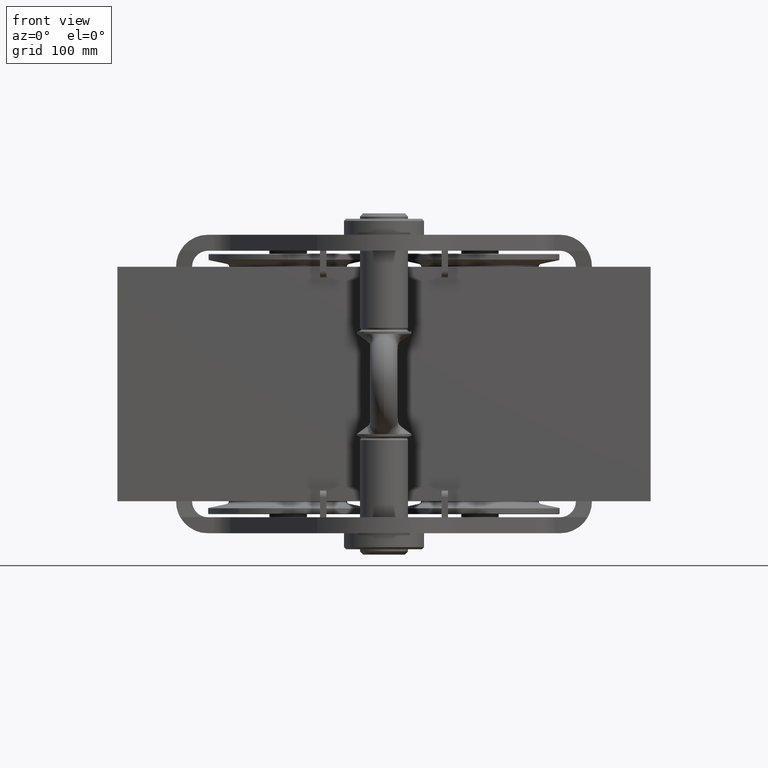
[diagram: clean part render]
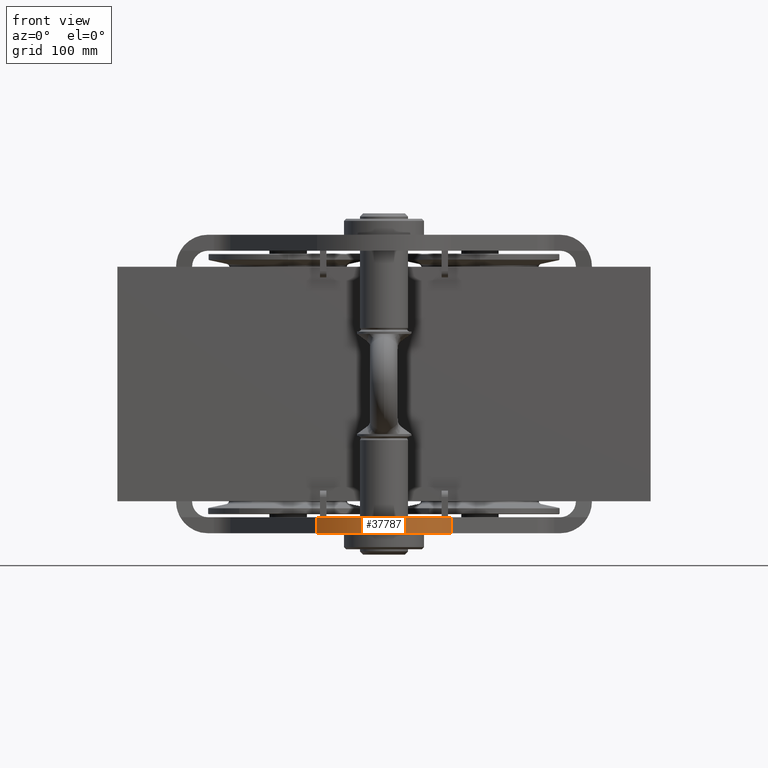
[diagram: same view with one face highlighted and labeled with its STEP entity id]
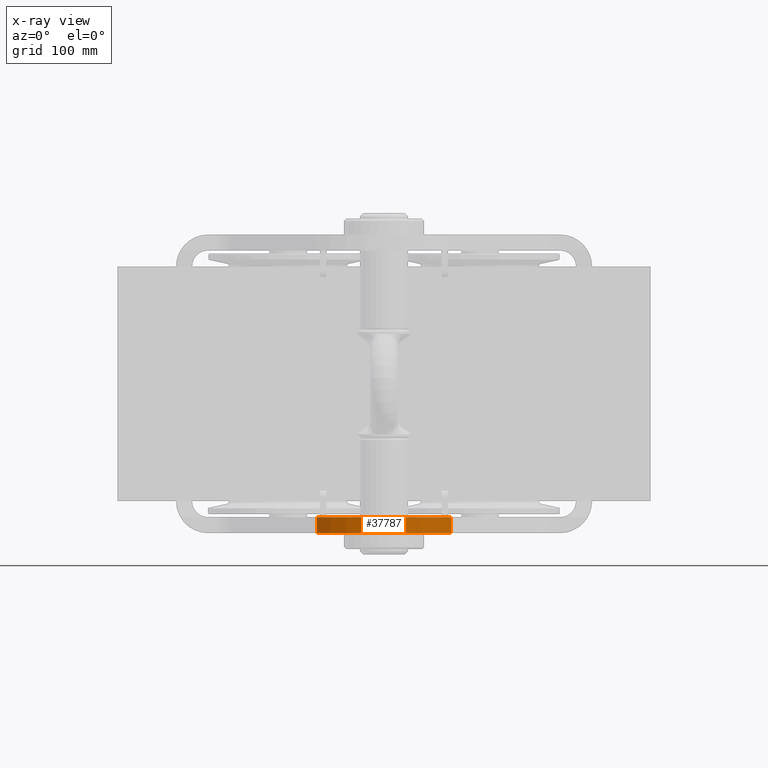
[diagram: x-ray of the same camera — body ghosted, the highlighted face saturated]
A machine part, front view. The second image highlights one B-rep face of the part: STEP entity #37787.
The next image is the same camera in x-ray: the body ghosted, the highlighted face saturated — about 0% of this face is hidden behind the body in this view.
In plain terms, the highlighted cylindrical surface (partial cylindrical patch) has radius 80 mm, axis along (0, 0, -1).
Its self-contained STEP definition (entity closure, byte-faithful):
#1549 = EDGE_CURVE ( 'NONE', #29307, #36361, #23593, .T. ) ;
#2804 = AXIS2_PLACEMENT_3D ( 'NONE', #40260, #20762, #34098 ) ;
#3208 = DIRECTION ( 'NONE',  ( 0.0000000000000000000, 1.224606353822377300E-016, -1.000000000000000000 ) ) ;
#6974 = CARTESIAN_POINT ( 'NONE',  ( -62.81381021161561100, -200.5421562580709700, -124.9999999999998400 ) ) ;
#7341 = CARTESIAN_POINT ( 'NONE',  ( 62.81381021161558200, -200.5421562580710300, -81.99999999999985800 ) ) ;
#7527 = FACE_OUTER_BOUND ( 'NONE', #13572, .T. ) ;
#8253 = LINE ( 'NONE', #8899, #10279 ) ;
#8899 = CARTESIAN_POINT ( 'NONE',  ( -62.81381021161561100, -200.5421562580709700, -81.99999999999985800 ) ) ;
#10116 = DIRECTION ( 'NONE',  ( 0.0000000000000000000, -1.224606353822377300E-016, 1.000000000000000000 ) ) ;
#10279 = VECTOR ( 'NONE', #35488, 1000.000000000000000 ) ;
#13133 = CYLINDRICAL_SURFACE ( 'NONE', #2804, 80.00000000000001400 ) ;
#13572 = EDGE_LOOP ( 'NONE', ( #20201, #38453, #25649, #35838 ) ) ;
#16580 = CARTESIAN_POINT ( 'NONE',  ( 62.81381021161558200, -200.5421562580710300, -139.9999999999998600 ) ) ;
#16663 = CARTESIAN_POINT ( 'NONE',  ( 0.0000000000000000000, -150.9999999999998600, -139.9999999999998600 ) ) ;
#18650 = CARTESIAN_POINT ( 'NONE',  ( 62.81381021161558200, -200.5421562580710300, -124.9999999999998400 ) ) ;
#19559 = VECTOR ( 'NONE', #33373, 1000.000000000000000 ) ;
#20201 = ORIENTED_EDGE ( 'NONE', *, *, #29771, .T. ) ;
#20762 = DIRECTION ( 'NONE',  ( 0.0000000000000000000, 1.224606353822377300E-016, -1.000000000000000000 ) ) ;
#23593 = LINE ( 'NONE', #7341, #19559 ) ;
#25312 = EDGE_CURVE ( 'NONE', #36361, #33958, #38903, .T. ) ;
#25649 = ORIENTED_EDGE ( 'NONE', *, *, #1549, .F. ) ;
#26072 = DIRECTION ( 'NONE',  ( 0.0000000000000000000, 1.000000000000000000, 0.0000000000000000000 ) ) ;
#29233 = DIRECTION ( 'NONE',  ( 0.0000000000000000000, -1.000000000000000000, -1.734723475976806800E-016 ) ) ;
#29307 = VERTEX_POINT ( 'NONE', #18650 ) ;
#29771 = EDGE_CURVE ( 'NONE', #31547, #33958, #8253, .T. ) ;
#31547 = VERTEX_POINT ( 'NONE', #6974 ) ;
#33373 = DIRECTION ( 'NONE',  ( 0.0000000000000000000, 1.224606353822377300E-016, -1.000000000000000000 ) ) ;
#33958 = VERTEX_POINT ( 'NONE', #36374 ) ;
#34098 = DIRECTION ( 'NONE',  ( 0.0000000000000000000, 1.000000000000000000, 1.734723475976806800E-016 ) ) ;
#35149 = CIRCLE ( 'NONE', #40959, 80.00000000000001400 ) ;
#35488 = DIRECTION ( 'NONE',  ( 0.0000000000000000000, 1.224606353822377300E-016, -1.000000000000000000 ) ) ;
#35838 = ORIENTED_EDGE ( 'NONE', *, *, #37151, .F. ) ;
#36361 = VERTEX_POINT ( 'NONE', #16580 ) ;
#36374 = CARTESIAN_POINT ( 'NONE',  ( -62.81381021161561100, -200.5421562580709700, -139.9999999999998600 ) ) ;
#37151 = EDGE_CURVE ( 'NONE', #31547, #29307, #35149, .T. ) ;
#37787 = ADVANCED_FACE ( 'NONE', ( #7527 ), #13133, .T. ) ;
#38453 = ORIENTED_EDGE ( 'NONE', *, *, #25312, .F. ) ;
#38722 = CARTESIAN_POINT ( 'NONE',  ( 0.0000000000000000000, -150.9999999999998600, -124.9999999999998600 ) ) ;
#38903 = CIRCLE ( 'NONE', #41139, 80.00000000000001400 ) ;
#40260 = CARTESIAN_POINT ( 'NONE',  ( 0.0000000000000000000, -150.9999999999998600, -81.99999999999984400 ) ) ;
#40959 = AXIS2_PLACEMENT_3D ( 'NONE', #38722, #10116, #29233 ) ;
#41139 = AXIS2_PLACEMENT_3D ( 'NONE', #16663, #3208, #26072 ) ;